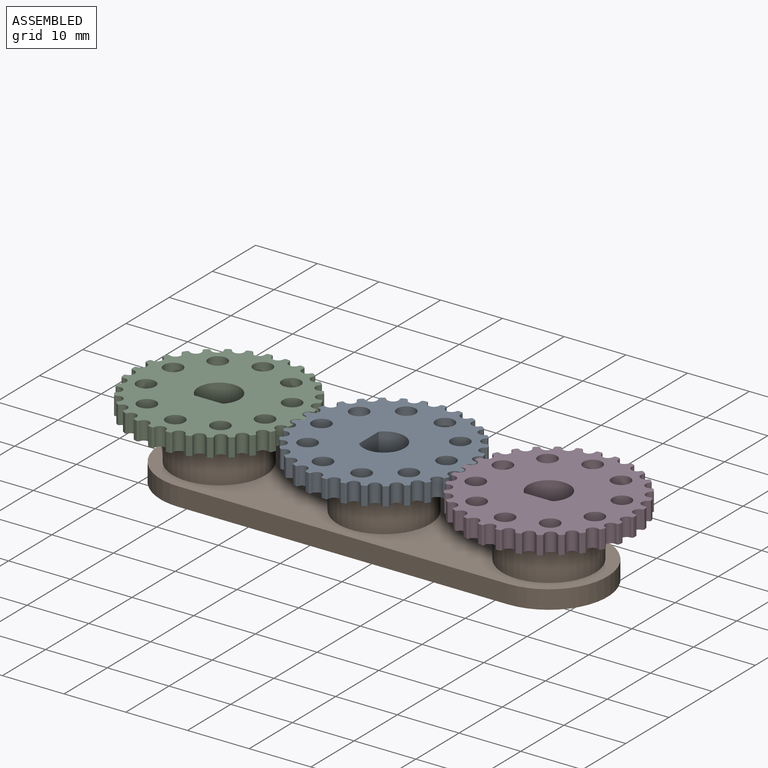
[diagram: assembled view]
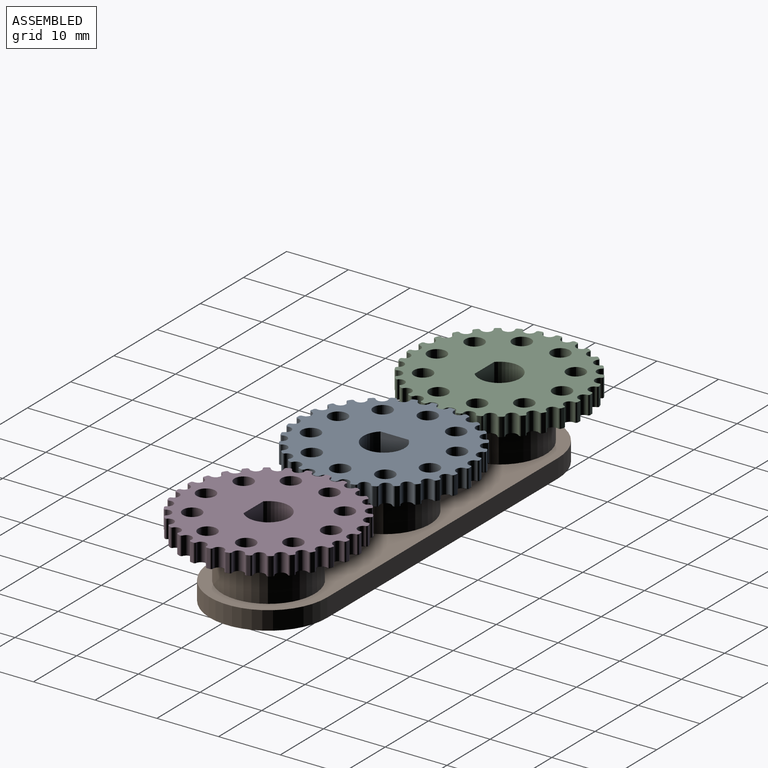
[diagram: assembled view, second angle]
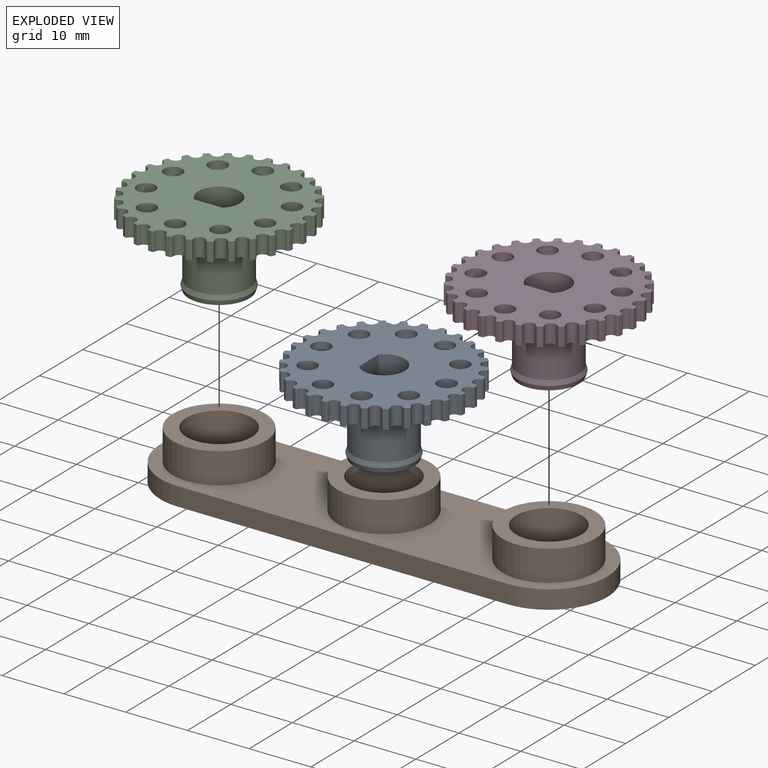
[diagram: exploded view]
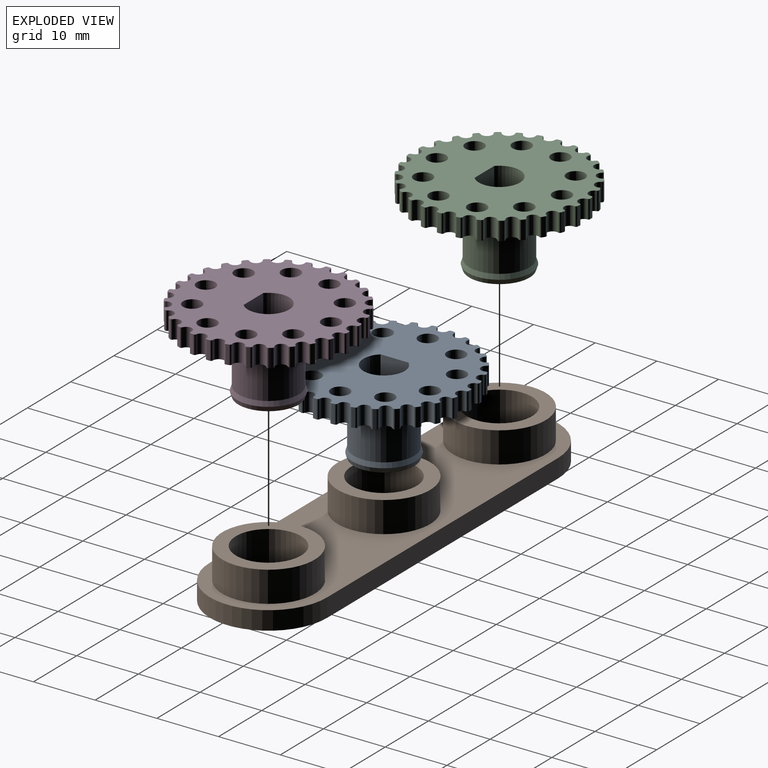
[diagram: exploded view, second angle]
ASSEMBLY  parts=4 mates=3
PART A: 140 faces, bbox 27.9x27.8x13.5 mm
  f0: cylinder r=4.9mm len=9.8mm, axis (0,0,-1), area 215.5mm2, adj f4,f139
  f1: cylinder r=3.35mm len=13.5mm, axis (0,0,-1), area 216.3mm2, adj f3,f5,f137
  f2: cylinder r=7.5mm len=15mm, axis (0,0,-1), area 94.2mm2, adj f4,f136
  f3: plane 13.5x4.57mm, normal (0,-1,0), area 61.7mm2, adj f1,f5,f137
  f4: plane 15x15mm, normal (0,0,1), area 101.3mm2, adj f0,f2
  f5: plane 27.89x27.78mm, normal (0,0,-1), area 454.1mm2, adj f1,f3,f6,f7,f8,f9,f10,f11
  f6: cylinder r=0.9mm len=3mm, axis (0,0,-1), area 8.1mm2, adj f5,f7,f135,f136
  f7: cylinder r=0.3mm len=3mm, axis (0,0,-1), area 1.4mm2, adj f5,f6,f8,f136
  f8: cylinder r=13.94mm len=3mm, axis (0,0,-1), area 1.4mm2, adj f5,f7,f9,f136
  f9: cylinder r=0.3mm len=3mm, axis (0,0,-1), area 1.4mm2, adj f5,f8,f10,f136
  f10: cylinder r=0.9mm len=3mm, axis (0,0,-1), area 8.1mm2, adj f5,f9,f11,f136
  f11: cylinder r=0.3mm len=3mm, axis (0,0,-1), area 1.4mm2, adj f5,f10,f12,f136
  f12: cylinder r=13.94mm len=3mm, axis (0,0,-1), area 1.4mm2, adj f5,f11,f13,f136
  f13: cylinder r=0.3mm len=3mm, axis (0,0,-1), area 1.4mm2, adj f5,f12,f14,f136
  f14: cylinder r=0.9mm len=3mm, axis (0,0,-1), area 8.1mm2, adj f5,f13,f15,f136
  f15: cylinder r=0.3mm len=3mm, axis (0,0,-1), area 1.4mm2, adj f5,f14,f16,f136
  f16: cylinder r=13.94mm len=3mm, axis (0,0,-1), area 1.4mm2, adj f5,f15,f17,f136
  f17: cylinder r=0.3mm len=3mm, axis (0,0,-1), area 1.4mm2, adj f5,f16,f18,f136
  f18: cylinder r=0.9mm len=3mm, axis (0,0,-1), area 8.1mm2, adj f5,f17,f19,f136
  f19: cylinder r=0.3mm len=3mm, axis (0,0,-1), area 1.4mm2, adj f5,f18,f20,f136
  f20: cylinder r=13.94mm len=3mm, axis (0,0,-1), area 1.4mm2, adj f5,f19,f21,f136
  f21: cylinder r=0.3mm len=3mm, axis (0,0,-1), area 1.4mm2, adj f5,f20,f22,f136
  f22: cylinder r=0.9mm len=3mm, axis (0,0,-1), area 8.1mm2, adj f5,f21,f23,f136
  f23: cylinder r=0.3mm len=3mm, axis (0,0,-1), area 1.4mm2, adj f5,f22,f24,f136
  f24: cylinder r=13.94mm len=3mm, axis (0,0,-1), area 1.4mm2, adj f5,f23,f25,f136
  f25: cylinder r=0.3mm len=3mm, axis (0,0,-1), area 1.4mm2, adj f5,f24,f26,f136
  f26: cylinder r=0.9mm len=3mm, axis (0,0,-1), area 8.1mm2, adj f5,f25,f27,f136
  f27: cylinder r=0.3mm len=3mm, axis (0,0,-1), area 1.4mm2, adj f5,f26,f28,f136
  f28: cylinder r=13.94mm len=3mm, axis (0,0,-1), area 1.4mm2, adj f5,f27,f29,f136
  f29: cylinder r=0.3mm len=3mm, axis (0,0,-1), area 1.4mm2, adj f5,f28,f30,f136
  f30: cylinder r=0.9mm len=3mm, axis (0,0,-1), area 8.1mm2, adj f5,f29,f31,f136
  f31: cylinder r=0.3mm len=3mm, axis (0,0,-1), area 1.4mm2, adj f5,f30,f32,f136
  f32: cylinder r=13.94mm len=3mm, axis (0,0,-1), area 1.4mm2, adj f5,f31,f33,f136
  f33: cylinder r=0.3mm len=3mm, axis (0,0,-1), area 1.4mm2, adj f5,f32,f34,f136
  f34: cylinder r=0.9mm len=3mm, axis (0,0,-1), area 8.1mm2, adj f5,f33,f35,f136
  f35: cylinder r=0.3mm len=3mm, axis (0,0,-1), area 1.4mm2, adj f5,f34,f36,f136
  f36: cylinder r=13.94mm len=3mm, axis (0,0,-1), area 1.4mm2, adj f5,f35,f37,f136
  f37: cylinder r=0.3mm len=3mm, axis (0,0,-1), area 1.4mm2, adj f5,f36,f38,f136
  f38: cylinder r=0.9mm len=3mm, axis (0,0,-1), area 8.1mm2, adj f5,f37,f39,f136
  f39: cylinder r=0.3mm len=3mm, axis (0,0,-1), area 1.4mm2, adj f5,f38,f40,f136
  f40: cylinder r=13.94mm len=3mm, axis (0,0,-1), area 1.4mm2, adj f5,f39,f41,f136
  f41: cylinder r=0.3mm len=3mm, axis (0,0,-1), area 1.4mm2, adj f5,f40,f42,f136
  f42: cylinder r=0.9mm len=3mm, axis (0,0,-1), area 8.1mm2, adj f5,f41,f43,f136
  f43: cylinder r=0.3mm len=3mm, axis (0,0,-1), area 1.4mm2, adj f5,f42,f44,f136
  f44: cylinder r=13.94mm len=3mm, axis (0,0,-1), area 1.4mm2, adj f5,f43,f45,f136
  f45: cylinder r=0.3mm len=3mm, axis (0,0,-1), area 1.4mm2, adj f5,f44,f46,f136
  f46: cylinder r=0.9mm len=3mm, axis (0,0,-1), area 8.1mm2, adj f5,f45,f47,f136
  f47: cylinder r=0.3mm len=3mm, axis (0,0,-1), area 1.4mm2, adj f5,f46,f48,f136
  f48: cylinder r=13.94mm len=3mm, axis (0,0,-1), area 1.4mm2, adj f5,f47,f49,f136
  f49: cylinder r=0.3mm len=3mm, axis (0,0,-1), area 1.4mm2, adj f5,f48,f50,f136
  f50: cylinder r=0.9mm len=3mm, axis (0,0,-1), area 8.1mm2, adj f5,f49,f51,f136
  f51: cylinder r=0.3mm len=3mm, axis (0,0,-1), area 1.4mm2, adj f5,f50,f52,f136
  f52: cylinder r=13.94mm len=3mm, axis (0,0,-1), area 1.4mm2, adj f5,f51,f53,f136
  f53: cylinder r=0.3mm len=3mm, axis (0,0,-1), area 1.4mm2, adj f5,f52,f54,f136
  f54: cylinder r=0.9mm len=3mm, axis (0,0,-1), area 8.1mm2, adj f5,f53,f55,f136
  f55: cylinder r=0.3mm len=3mm, axis (0,0,-1), area 1.4mm2, adj f5,f54,f56,f136
  f56: cylinder r=13.94mm len=3mm, axis (0,0,-1), area 1.4mm2, adj f5,f55,f57,f136
  f57: cylinder r=0.3mm len=3mm, axis (0,0,-1), area 1.4mm2, adj f5,f56,f58,f136
  f58: cylinder r=0.9mm len=3mm, axis (0,0,-1), area 8.1mm2, adj f5,f57,f59,f136
  f59: cylinder r=0.3mm len=3mm, axis (0,0,-1), area 1.4mm2, adj f5,f58,f60,f136
  f60: cylinder r=13.94mm len=3mm, axis (0,0,-1), area 1.4mm2, adj f5,f59,f61,f136
  f61: cylinder r=0.3mm len=3mm, axis (0,0,-1), area 1.4mm2, adj f5,f60,f62,f136
  f62: cylinder r=0.9mm len=3mm, axis (0,0,-1), area 8.1mm2, adj f5,f61,f63,f136
  f63: cylinder r=0.3mm len=3mm, axis (0,0,-1), area 1.4mm2, adj f5,f62,f64,f136
  f64: cylinder r=13.94mm len=3mm, axis (0,0,-1), area 1.4mm2, adj f5,f63,f65,f136
  f65: cylinder r=0.3mm len=3mm, axis (0,0,-1), area 1.4mm2, adj f5,f64,f66,f136
  f66: cylinder r=0.9mm len=3mm, axis (0,0,-1), area 8.1mm2, adj f5,f65,f67,f136
  f67: cylinder r=0.3mm len=3mm, axis (0,0,-1), area 1.4mm2, adj f5,f66,f68,f136
  f68: cylinder r=13.94mm len=3mm, axis (0,0,-1), area 1.4mm2, adj f5,f67,f69,f136
  f69: cylinder r=0.3mm len=3mm, axis (0,0,-1), area 1.4mm2, adj f5,f68,f70,f136
  f70: cylinder r=0.9mm len=3mm, axis (0,0,-1), area 8.1mm2, adj f5,f69,f71,f136
  f71: cylinder r=0.3mm len=3mm, axis (0,0,-1), area 1.4mm2, adj f5,f70,f72,f136
  f72: cylinder r=13.94mm len=3mm, axis (0,0,-1), area 1.4mm2, adj f5,f71,f73,f136
  f73: cylinder r=0.3mm len=3mm, axis (0,0,-1), area 1.4mm2, adj f5,f72,f74,f136
  f74: cylinder r=0.9mm len=3mm, axis (0,0,-1), area 8.1mm2, adj f5,f73,f75,f136
  f75: cylinder r=0.3mm len=3mm, axis (0,0,-1), area 1.4mm2, adj f5,f74,f76,f136
  f76: cylinder r=13.94mm len=3mm, axis (0,0,-1), area 1.4mm2, adj f5,f75,f77,f136
  f77: cylinder r=0.3mm len=3mm, axis (0,0,-1), area 1.4mm2, adj f5,f76,f78,f136
  f78: cylinder r=0.9mm len=3mm, axis (0,0,-1), area 8.1mm2, adj f5,f77,f79,f136
  f79: cylinder r=0.3mm len=3mm, axis (0,0,-1), area 1.4mm2, adj f5,f78,f80,f136
  f80: cylinder r=13.94mm len=3mm, axis (0,0,-1), area 1.4mm2, adj f5,f79,f81,f136
  f81: cylinder r=0.3mm len=3mm, axis (0,0,-1), area 1.4mm2, adj f5,f80,f82,f136
  f82: cylinder r=0.9mm len=3mm, axis (0,0,-1), area 8.1mm2, adj f5,f81,f83,f136
  f83: cylinder r=0.3mm len=3mm, axis (0,0,-1), area 1.4mm2, adj f5,f82,f84,f136
  f84: cylinder r=13.94mm len=3mm, axis (0,0,-1), area 1.4mm2, adj f5,f83,f85,f136
  f85: cylinder r=0.3mm len=3mm, axis (0,0,-1), area 1.4mm2, adj f5,f84,f86,f136
  f86: cylinder r=0.9mm len=3mm, axis (0,0,-1), area 8.1mm2, adj f5,f85,f87,f136
  f87: cylinder r=0.3mm len=3mm, axis (0,0,-1), area 1.4mm2, adj f5,f86,f88,f136
  f88: cylinder r=13.94mm len=3mm, axis (0,0,-1), area 1.4mm2, adj f5,f87,f89,f136
  f89: cylinder r=0.3mm len=3mm, axis (0,0,-1), area 1.4mm2, adj f5,f88,f90,f136
  f90: cylinder r=0.9mm len=3mm, axis (0,0,-1), area 8.1mm2, adj f5,f89,f91,f136
  f91: cylinder r=0.3mm len=3mm, axis (0,0,-1), area 1.4mm2, adj f5,f90,f92,f136
  f92: cylinder r=13.94mm len=3mm, axis (0,0,-1), area 1.4mm2, adj f5,f91,f93,f136
  f93: cylinder r=0.3mm len=3mm, axis (0,0,-1), area 1.4mm2, adj f5,f92,f94,f136
  f94: cylinder r=0.9mm len=3mm, axis (0,0,-1), area 8.1mm2, adj f5,f93,f95,f136
  f95: cylinder r=0.3mm len=3mm, axis (0,0,-1), area 1.4mm2, adj f5,f94,f96,f136
  f96: cylinder r=13.94mm len=3mm, axis (0,0,-1), area 1.4mm2, adj f5,f95,f97,f136
  f97: cylinder r=0.3mm len=3mm, axis (0,0,-1), area 1.4mm2, adj f5,f96,f98,f136
  f98: cylinder r=0.9mm len=3mm, axis (0,0,-1), area 8.1mm2, adj f5,f97,f99,f136
  f99: cylinder r=0.3mm len=3mm, axis (0,0,-1), area 1.4mm2, adj f5,f98,f100,f136
  f100: cylinder r=13.94mm len=3mm, axis (0,0,-1), area 1.4mm2, adj f5,f99,f101,f136
  f101: cylinder r=0.3mm len=3mm, axis (0,0,-1), area 1.4mm2, adj f5,f100,f102,f136
  f102: cylinder r=0.9mm len=3mm, axis (0,0,-1), area 8.1mm2, adj f5,f101,f103,f136
  f103: cylinder r=0.3mm len=3mm, axis (0,0,-1), area 1.4mm2, adj f5,f102,f104,f136
  f104: cylinder r=13.94mm len=3mm, axis (0,0,-1), area 1.4mm2, adj f5,f103,f105,f136
  f105: cylinder r=0.3mm len=3mm, axis (0,0,-1), area 1.4mm2, adj f5,f104,f106,f136
  f106: cylinder r=0.9mm len=3mm, axis (0,0,-1), area 8.1mm2, adj f5,f105,f107,f136
  f107: cylinder r=0.3mm len=3mm, axis (0,0,-1), area 1.4mm2, adj f5,f106,f108,f136
  f108: cylinder r=13.94mm len=3mm, axis (0,0,-1), area 1.4mm2, adj f5,f107,f109,f136
  f109: cylinder r=0.3mm len=3mm, axis (0,0,-1), area 1.4mm2, adj f5,f108,f110,f136
  f110: cylinder r=0.9mm len=3mm, axis (0,0,-1), area 8.1mm2, adj f5,f109,f111,f136
  f111: cylinder r=0.3mm len=3mm, axis (0,0,-1), area 1.4mm2, adj f5,f110,f112,f136
  f112: cylinder r=13.94mm len=3mm, axis (0,0,-1), area 1.4mm2, adj f5,f111,f113,f136
  f113: cylinder r=0.3mm len=3mm, axis (0,0,-1), area 1.4mm2, adj f5,f112,f114,f136
  f114: cylinder r=0.9mm len=3mm, axis (0,0,-1), area 8.1mm2, adj f5,f113,f115,f136
  f115: cylinder r=0.3mm len=3mm, axis (0,0,-1), area 1.4mm2, adj f5,f114,f116,f136
  f116: cylinder r=13.94mm len=3mm, axis (0,0,-1), area 1.4mm2, adj f5,f115,f117,f136
  f117: cylinder r=0.3mm len=3mm, axis (0,0,-1), area 1.4mm2, adj f5,f116,f118,f136
  f118: cylinder r=0.9mm len=3mm, axis (0,0,-1), area 8.1mm2, adj f5,f117,f119,f136
  f119: cylinder r=0.3mm len=3mm, axis (0,0,-1), area 1.4mm2, adj f5,f118,f120,f136
  f120: cylinder r=13.94mm len=3mm, axis (0,0,-1), area 1.4mm2, adj f5,f119,f121,f136
  f121: cylinder r=0.3mm len=3mm, axis (0,0,-1), area 1.4mm2, adj f5,f120,f122,f136
  f122: cylinder r=0.9mm len=3mm, axis (0,0,-1), area 8.1mm2, adj f5,f121,f123,f136
  f123: cylinder r=0.3mm len=3mm, axis (0,0,-1), area 1.4mm2, adj f5,f122,f124,f136
  f124: cylinder r=13.94mm len=3mm, axis (0,0,-1), area 1.4mm2, adj f5,f123,f135,f136
  f125: cylinder r=1.5mm len=3mm, axis (0,0,-1), area 28.3mm2, adj f5,f136
  f126: cylinder r=1.5mm len=3mm, axis (0,0,-1), area 28.3mm2, adj f5,f136
  f127: cylinder r=1.5mm len=3mm, axis (0,0,-1), area 28.3mm2, adj f5,f136
  f128: cylinder r=1.5mm len=3mm, axis (0,0,-1), area 28.3mm2, adj f5,f136
  f129: cylinder r=1.5mm len=3mm, axis (0,0,-1), area 28.3mm2, adj f5,f136
  f130: cylinder r=1.5mm len=3mm, axis (0,0,-1), area 28.3mm2, adj f5,f136
  f131: cylinder r=1.5mm len=3mm, axis (0,0,-1), area 28.3mm2, adj f5,f136
  f132: cylinder r=1.5mm len=3mm, axis (0,0,-1), area 28.3mm2, adj f5,f136
  f133: cylinder r=1.5mm len=3mm, axis (0,0,-1), area 28.3mm2, adj f5,f136
  f134: cylinder r=1.5mm len=3mm, axis (0,0,-1), area 28.3mm2, adj f5,f136
  f135: cylinder r=0.3mm len=3mm, axis (0,0,-1), area 1.4mm2, adj f5,f6,f124,f136
  f136: plane 27.89x27.78mm, normal (0,0,1), area 309.8mm2, adj f2,f6,f7,f8,f9,f10,f11,f12
  f137: plane 9.8x9.8mm, normal (0,0,1), area 43mm2, adj f1,f3,f138
  f138: cone r=4.9mm half-angle=18.4deg, axis (0,0,-1), area 25mm2, adj f137,f139
  f139: cone r=5.15mm half-angle=18.4deg, axis (0,0,1), area 25mm2, adj f0,f138
PART B: 15 faces, bbox 72.4x19x8 mm
  f0: cylinder r=9.5mm len=19mm, axis (0,0,-1), area 89.5mm2, adj f1,f5,f7,f8
  f1: plane 53.44x3mm, normal (0,1,0), area 160.3mm2, adj f0,f2,f7,f8
  f2: cylinder r=9.5mm len=19mm, axis (0,0,-1), area 89.5mm2, adj f1,f5,f7,f8
  f3: cylinder r=5.3mm len=10.6mm, axis (0,0,-1), area 266.4mm2, adj f8,f12
  f4: cylinder r=5.3mm len=10.6mm, axis (0,0,-1), area 266.4mm2, adj f8,f10
  f5: plane 53.44x3mm, normal (0,-1,0), area 160.3mm2, adj f0,f2,f7,f8
  f6: cylinder r=5.3mm len=10.6mm, axis (0,0,-1), area 266.4mm2, adj f8,f14
  f7: plane 72.44x19mm, normal (0,0,1), area 768.7mm2, adj f0,f1,f2,f5,f9,f11,f13
  f8: plane 72.44x19mm, normal (0,0,-1), area 1034.1mm2, adj f0,f1,f2,f3,f4,f5,f6
  f9: cylinder r=7.5mm len=15mm, axis (0,0,-1), area 235.6mm2, adj f7,f10
  f10: plane 15x15mm, normal (0,0,1), area 88.5mm2, adj f4,f9
  f11: cylinder r=7.5mm len=15mm, axis (0,0,-1), area 235.6mm2, adj f7,f12
  f12: plane 15x15mm, normal (0,0,1), area 88.5mm2, adj f3,f11
  f13: cylinder r=7.5mm len=15mm, axis (0,0,-1), area 235.6mm2, adj f7,f14
  f14: plane 15x15mm, normal (0,0,1), area 88.5mm2, adj f6,f13
PART C: same geometry as A
PART D: same geometry as A
PLACE A rot(axis=(0.71,-0.71,0),180deg) t=(-22.37,-6.86,-4.33)mm
PLACE B t=(-49.09,-6.86,-17.33)mm fixed
PLACE C rot(axis=(1,0,0),180deg) t=(-49.09,-6.86,-4.33)mm
PLACE D rot(axis=(1,0,0),180deg) t=(4.35,-6.86,-4.33)mm
MATE revolute A.f0 <-> B.f3  axis (0,0,-1) through (-22.37,-6.86,-9.33)mm
MATE revolute C.f0 <-> B.f4  axis (0,0,-1) through (-49.09,-6.86,-9.33)mm
MATE revolute D.f0 <-> B.f6  axis (0,0,-1) through (4.35,-6.86,-9.33)mm
